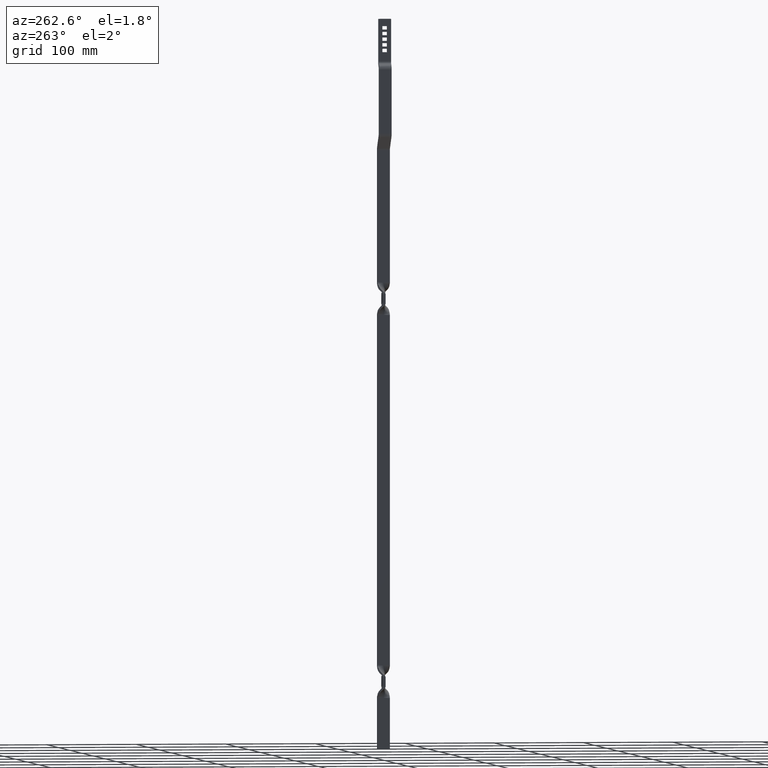
[diagram: clean part render]
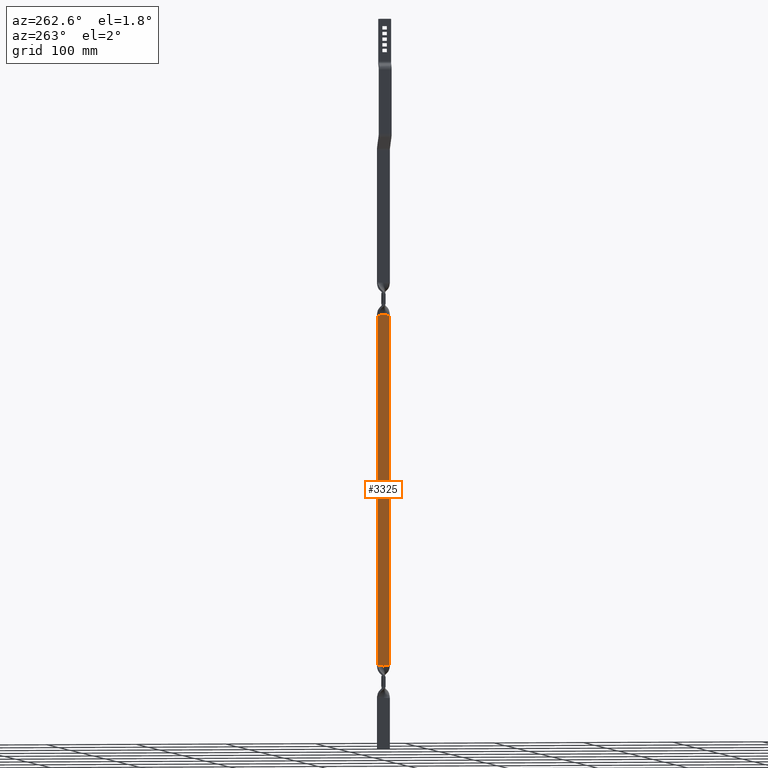
[diagram: same view with one face highlighted and labeled with its STEP entity id]
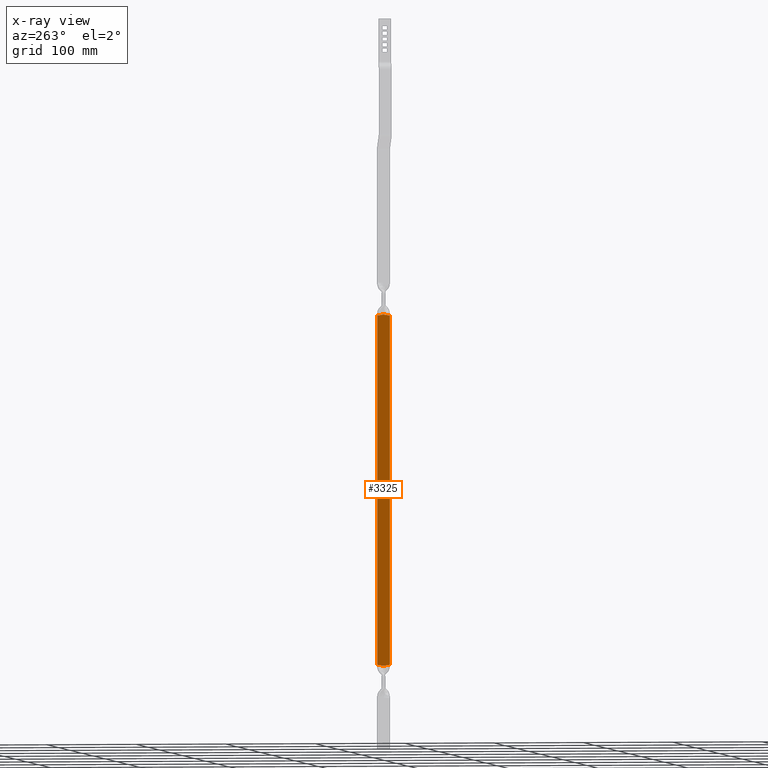
[diagram: x-ray of the same camera — body ghosted, the highlighted face saturated]
A machine part, auxiliary view. The second image highlights one B-rep face of the part: STEP entity #3325.
The next image is the same camera in x-ray: the body ghosted, the highlighted face saturated — about 0% of this face is hidden behind the body in this view.
In plain terms, the highlighted face is a freeform B-spline surface patch.
Its self-contained STEP definition (entity closure, byte-faithful):
#82=CARTESIAN_POINT('',(10.500000000114801,0.271775746008785,-708.499999999854030));
#83=VERTEX_POINT('',#82);
#116=CARTESIAN_POINT('',(10.499999999008400,7.0,-707.313138852912970));
#117=VERTEX_POINT('',#116);
#118=CARTESIAN_POINT('',(10.499999999008400,7.0,-707.313138852912970));
#119=CARTESIAN_POINT('',(10.499999999008400,6.434663200656486,-707.383037045016980));
#120=CARTESIAN_POINT('',(10.499999999008280,5.870319582345684,-707.459521505263870));
#121=CARTESIAN_POINT('',(10.499999999008280,4.743986133089032,-707.628099538524790));
#122=CARTESIAN_POINT('',(10.499999999008381,4.182009287613838,-707.720279224532530));
#123=CARTESIAN_POINT('',(10.499999999008381,3.060560235761113,-707.921248080776650));
#124=CARTESIAN_POINT('',(10.499999999008359,2.501421361926354,-708.030178086853080));
#125=CARTESIAN_POINT('',(10.499999999008359,1.385487364181729,-708.259859975813240));
#126=CARTESIAN_POINT('',(10.499999999008400,0.828539544720624,-708.380521644597250));
#127=CARTESIAN_POINT('',(10.500000000114801,0.271775746008785,-708.499999999854030));
#128=B_SPLINE_CURVE_WITH_KNOTS('',3,(#118,#119,#120,#121,#122,#123,#124,#125,#126,#127),.UNSPECIFIED.,.F.,.U.,(4,2,2,2,4),(0.0,0.250000000000000,0.500000000000000,0.750000000000000,1.0),.UNSPECIFIED.);
#129=EDGE_CURVE('',#117,#83,#128,.T.);
#194=CARTESIAN_POINT('',(10.499999999008400,-7.0,-707.289823194242900));
#195=VERTEX_POINT('',#194);
#209=CARTESIAN_POINT('',(10.500000000114801,0.271775746008785,-708.499999999854030));
#210=CARTESIAN_POINT('',(10.499999999008400,-0.331122716566621,-708.381826647452160));
#211=CARTESIAN_POINT('',(10.499999999008351,-0.934187228241604,-708.262608885958000));
#212=CARTESIAN_POINT('',(10.499999999008351,-2.141573674206475,-708.032512665077770));
#213=CARTESIAN_POINT('',(10.499999999008320,-2.746067614319510,-707.921779645768080));
#214=CARTESIAN_POINT('',(10.499999999008320,-3.957689164000196,-707.715155311425630));
#215=CARTESIAN_POINT('',(10.499999999008310,-4.564574697843986,-707.619239174222570));
#216=CARTESIAN_POINT('',(10.499999999008310,-5.780642736458381,-707.443213667439750));
#217=CARTESIAN_POINT('',(10.499999999008400,-6.389812878386292,-707.363019222083840));
#218=CARTESIAN_POINT('',(10.499999999008400,-7.0,-707.289823194242900));
#219=B_SPLINE_CURVE_WITH_KNOTS('',3,(#209,#210,#211,#212,#213,#214,#215,#216,#217,#218),.UNSPECIFIED.,.F.,.U.,(4,2,2,2,4),(0.0,0.250000000000000,0.500000000000000,0.750000000000000,1.0),.UNSPECIFIED.);
#220=EDGE_CURVE('',#83,#195,#219,.T.);
#1559=CARTESIAN_POINT('',(10.499999999999559,0.271775746012084,-318.499999999955490));
#1560=VERTEX_POINT('',#1559);
#1561=CARTESIAN_POINT('',(10.499999999008359,7.0,-319.686861147020010));
#1562=VERTEX_POINT('',#1561);
#1563=CARTESIAN_POINT('',(10.499999999999559,0.271775746012084,-318.499999999955490));
#1564=CARTESIAN_POINT('',(10.499999999008359,0.828539368230509,-318.619479177597610));
#1565=CARTESIAN_POINT('',(10.499999999008359,1.385487364169189,-318.740140024571080));
#1566=CARTESIAN_POINT('',(10.499999999008351,2.501421361954749,-318.969821913254180));
#1567=CARTESIAN_POINT('',(10.499999999008329,3.060560235788956,-319.078751919296620));
#1568=CARTESIAN_POINT('',(10.499999999008329,4.182009287638985,-319.279720775471280));
#1569=CARTESIAN_POINT('',(10.499999999008370,4.743986133110206,-319.371900461459920));
#1570=CARTESIAN_POINT('',(10.499999999008370,5.870319582357410,-319.540478494689980));
#1571=CARTESIAN_POINT('',(10.499999999008359,6.434663200662674,-319.616962954924990));
#1572=CARTESIAN_POINT('',(10.499999999008359,7.0,-319.686861147020010));
#1573=B_SPLINE_CURVE_WITH_KNOTS('',3,(#1563,#1564,#1565,#1566,#1567,#1568,#1569,#1570,#1571,#1572),.UNSPECIFIED.,.F.,.U.,(4,2,2,2,4),(0.0,0.250000000000000,0.500000000000000,0.750000000000000,1.0),.UNSPECIFIED.);
#1574=EDGE_CURVE('',#1560,#1562,#1573,.T.);
#1707=CARTESIAN_POINT('',(10.499999999008359,-7.0,-319.710176805439000));
#1708=VERTEX_POINT('',#1707);
#1709=CARTESIAN_POINT('',(10.499999999008359,-7.0,-319.710176805439000));
#1710=CARTESIAN_POINT('',(10.499999999008359,-6.389812878379946,-319.636980777588180));
#1711=CARTESIAN_POINT('',(10.499999999008230,-5.780642736446040,-319.556786332221120));
#1712=CARTESIAN_POINT('',(10.499999999008240,-4.564574697822153,-319.380760825402720));
#1713=CARTESIAN_POINT('',(10.499999999008340,-3.957689163974790,-319.284844688177600));
#1714=CARTESIAN_POINT('',(10.499999999008340,-2.746067614291986,-319.078220353755910));
#1715=CARTESIAN_POINT('',(10.499999999008329,-2.141573674178581,-318.967487334406710));
#1716=CARTESIAN_POINT('',(10.499999999008340,-0.934187228257381,-318.737391113211690));
#1717=CARTESIAN_POINT('',(10.499999999008301,-0.331122998458082,-318.618171914227100));
#1718=CARTESIAN_POINT('',(10.499999999999559,0.271775746012084,-318.499999999955490));
#1719=B_SPLINE_CURVE_WITH_KNOTS('',3,(#1709,#1710,#1711,#1712,#1713,#1714,#1715,#1716,#1717,#1718),.UNSPECIFIED.,.F.,.U.,(4,2,2,2,4),(0.0,0.250000000000000,0.500000000000000,0.750000000000000,1.0),.UNSPECIFIED.);
#1720=EDGE_CURVE('',#1708,#1560,#1719,.T.);
#3255=CARTESIAN_POINT('',(10.499999999008400,7.0,-707.313138852912970));
#3256=CARTESIAN_POINT('',(10.499999999008359,7.0,-319.686861147020010));
#3257=QUASI_UNIFORM_CURVE('',1,(#3255,#3256),.UNSPECIFIED.,.F.,.U.);
#3258=EDGE_CURVE('',#117,#1562,#3257,.T.);
#3275=CARTESIAN_POINT('',(10.499999999008400,-7.0,-707.289823194242900));
#3276=CARTESIAN_POINT('',(10.499999999008359,-7.0,-319.710176805439000));
#3277=QUASI_UNIFORM_CURVE('',1,(#3275,#3276),.UNSPECIFIED.,.F.,.U.);
#3278=EDGE_CURVE('',#195,#1708,#3277,.T.);
#3312=CARTESIAN_POINT('',(10.499999999008400,-7.699299972865286,-727.980499243953200));
#3313=CARTESIAN_POINT('',(10.499999999008400,-7.699299972865286,-299.019490295240980));
#3314=CARTESIAN_POINT('',(10.499999999008400,7.699300348374547,-727.980499243953200));
#3315=CARTESIAN_POINT('',(10.499999999008400,7.699300348374547,-299.019490295240980));
#3316=B_SPLINE_SURFACE_WITH_KNOTS('',1,1,((#3312,#3314),(#3313,#3315)),.UNSPECIFIED.,.F.,.F.,.U.,(2,2),(2,2),(0.0,428.961008948712220),(0.0,15.398600321239829),.UNSPECIFIED.);
#3317=ORIENTED_EDGE('',*,*,#3258,.F.);
#3318=ORIENTED_EDGE('',*,*,#129,.T.);
#3319=ORIENTED_EDGE('',*,*,#220,.T.);
#3320=ORIENTED_EDGE('',*,*,#3278,.T.);
#3321=ORIENTED_EDGE('',*,*,#1720,.T.);
#3322=ORIENTED_EDGE('',*,*,#1574,.T.);
#3323=EDGE_LOOP('',(#3317,#3318,#3319,#3320,#3321,#3322));
#3324=FACE_OUTER_BOUND('',#3323,.T.);
#3325=ADVANCED_FACE('',(#3324),#3316,.T.);